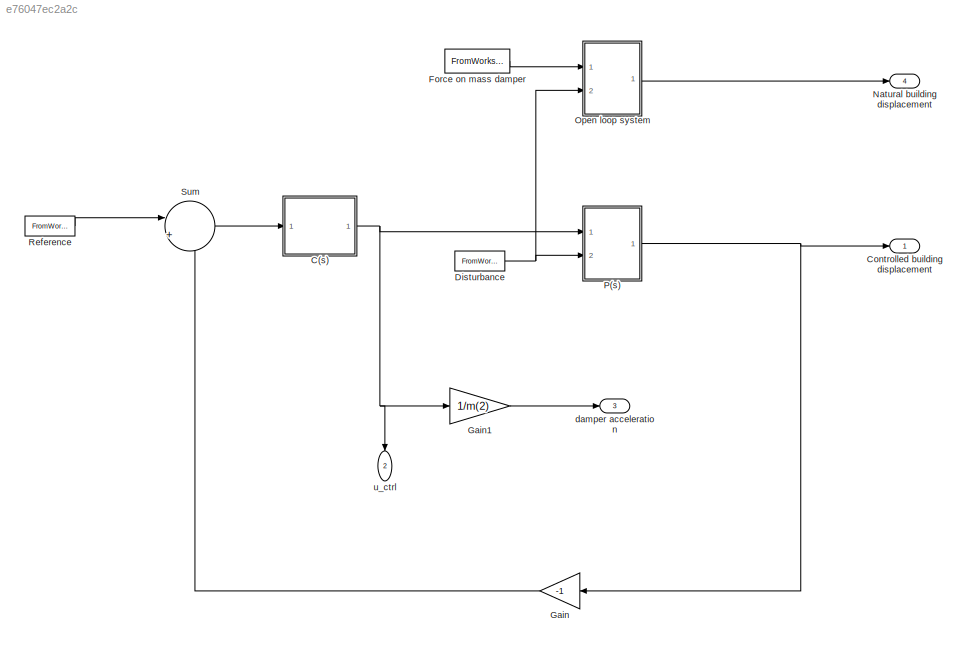
MODEL slx_e76047ec2a2c
KIND model
CONFIG AbsTol = auto
CONFIG EnableMultiTasking = off
CONFIG FixedStep = auto
CONFIG MaxStep = auto
CONFIG MinStep = auto
CONFIG RelTol = 1e-3
CONFIG SampleTimeConstraint = Unconstrained
CONFIG Solver = VariableStepAuto
CONFIG SolverName = VariableStepAuto
CONFIG StartTime = 0.0
CONFIG StopTime = 15
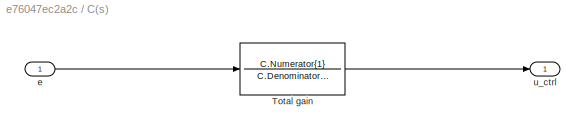
BLOCK [SubSystem] C(s)
  Ports = [1, 1]
  RequestExecContextInheritance = off
BLOCK [TransferFcn] C(s)/Total gain
  Denominator = C.Denominator{1}
  Numerator = C.Numerator{1}
BLOCK [Inport] C(s)/e
  IconDisplay = Port number
BLOCK [Outport] C(s)/u_ctrl
  IconDisplay = Port number
BLOCK [Outport] Controlled building displacement
  IconDisplay = Port number
BLOCK [FromWorkspace] Disturbance
  SampleTime = 0
  VariableName = d
  ZeroCross = on
BLOCK [FromWorkspace] Force on mass damper
  SampleTime = 0
  VariableName = u
  ZeroCross = on
BLOCK [Gain] Gain
  Gain = -1
  OutDataTypeStr = Inherit: Inherit via internal rule
  ParamDataTypeStr = Inherit: Inherit via internal rule
  SaturateOnIntegerOverflow = off
BLOCK [Gain] Gain1
  Gain = 1/m(2)
  OutDataTypeStr = Inherit: Inherit via internal rule
  ParamDataTypeStr = Inherit: Inherit via internal rule
  SaturateOnIntegerOverflow = off
BLOCK [Outport] Natural building displacement
  IconDisplay = Port number
  Port = 4
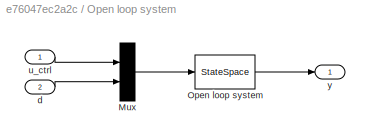
BLOCK [SubSystem] Open loop system
  Ports = [2, 1]
  RequestExecContextInheritance = off
BLOCK [Mux] Open loop system/Mux
  DisplayOption = bar
  Inputs = 2
  Ports = [2, 1]
BLOCK [StateSpace] Open loop system/Open loop system
  A = sys.A
  B = sys.B
  C = sys.C
  D = sys.D
  InitialCondition = x0
  Ports = [1, 1]
BLOCK [Inport] Open loop system/d
  IconDisplay = Port number
  Port = 2
BLOCK [Inport] Open loop system/u_ctrl
  IconDisplay = Port number
BLOCK [Outport] Open loop system/y
  IconDisplay = Port number
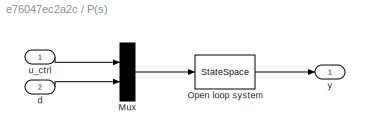
BLOCK [SubSystem] P(s)
  Ports = [2, 1]
  RequestExecContextInheritance = off
BLOCK [Mux] P(s)/Mux
  DisplayOption = bar
  Inputs = 2
  Ports = [2, 1]
BLOCK [StateSpace] P(s)/Open loop system
  A = sys.A
  B = sys.B
  C = sys.C
  D = sys.D
  InitialCondition = x0
  Ports = [1, 1]
BLOCK [Inport] P(s)/d
  IconDisplay = Port number
  Port = 2
BLOCK [Inport] P(s)/u_ctrl
  IconDisplay = Port number
BLOCK [Outport] P(s)/y
  IconDisplay = Port number
BLOCK [FromWorkspace] Reference
  SampleTime = 0
  VariableName = r
  ZeroCross = on
BLOCK [Sum] Sum
  IconShape = round
  InputSameDT = off
  Inputs = |++
  OutDataTypeStr = Inherit: Inherit via internal rule
  Ports = [2, 1]
  SaturateOnIntegerOverflow = off
BLOCK [Outport] damper acceleration
  IconDisplay = Port number
  Port = 3
BLOCK [Outport] u_ctrl
  IconDisplay = Port number
  Port = 2
LINE C(s)/Total gain:1 -> C(s)/u_ctrl:1
LINE C(s)/e:1 -> C(s)/Total gain:1
NET C(s):1 -> Gain1:1, P(s):1, u_ctrl:1
NET Disturbance:1 -> Open loop system:2, P(s):2
LINE Force on mass damper:1 -> Open loop system:1
LINE Gain1:1 -> damper acceleration:1
LINE Gain:1 -> Sum:2
LINE Open loop system/Mux:1 -> Open loop system/Open loop system:1
LINE Open loop system/Open loop system:1 -> Open loop system/y:1
LINE Open loop system/d:1 -> Open loop system/Mux:2
LINE Open loop system/u_ctrl:1 -> Open loop system/Mux:1
LINE Open loop system:1 -> Natural building displacement:1
LINE P(s)/Mux:1 -> P(s)/Open loop system:1
LINE P(s)/Open loop system:1 -> P(s)/y:1
LINE P(s)/d:1 -> P(s)/Mux:2
LINE P(s)/u_ctrl:1 -> P(s)/Mux:1
NET P(s):1 -> Controlled building displacement:1, Gain:1
LINE Reference:1 -> Sum:1
LINE Sum:1 -> C(s):1
note: NET lines group one-source signal fan-out (src -> all destinations, sorted); 1:1 wires keep LINE
